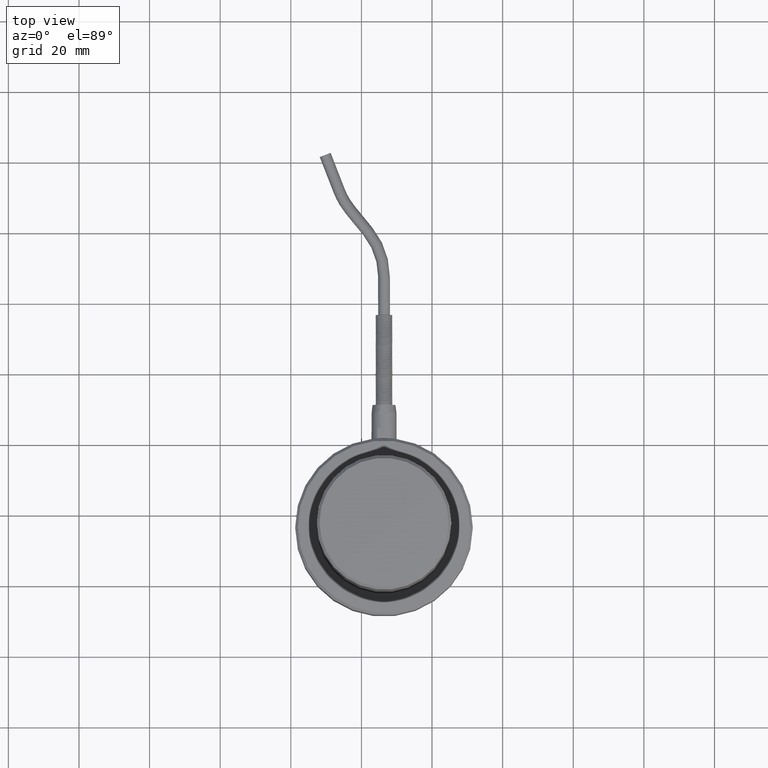
[diagram: clean part render]
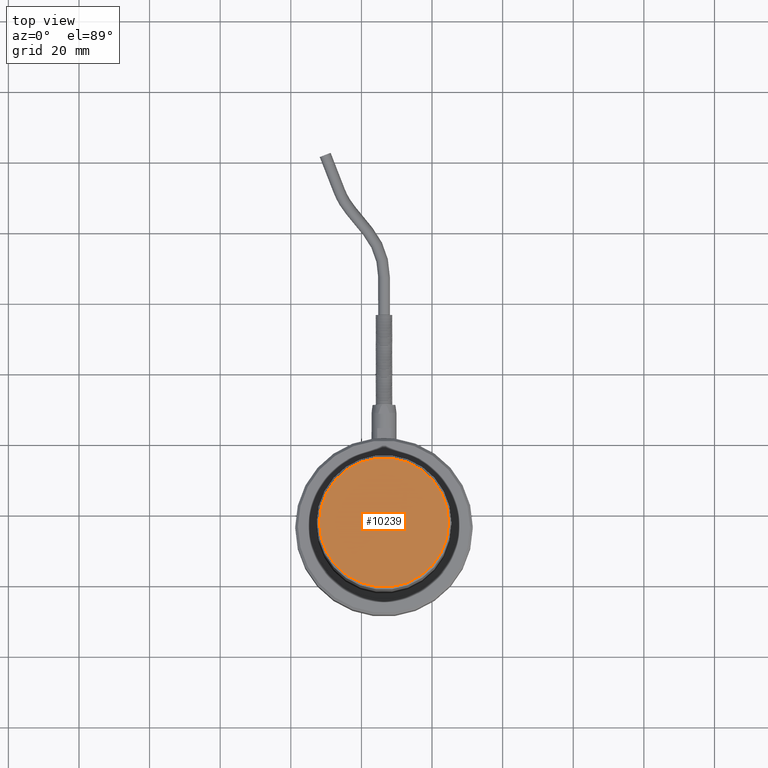
[diagram: same view with one face highlighted and labeled with its STEP entity id]
A machine part, top view. The second image highlights one B-rep face of the part: STEP entity #10239.
In plain terms, the highlighted planar face has unit normal (0, 0, 1).
Its self-contained STEP definition (entity closure, byte-faithful):
#7074=CARTESIAN_POINT('',(0.719999999999999,8.817166E-017,-3.061000000000000));
#7075=VERTEX_POINT('',#7074);
#7076=CARTESIAN_POINT('',(-6.418799E-016,0.0,-3.061000000000000));
#7077=DIRECTION('',(0.0,0.0,1.0));
#7078=DIRECTION('',(-1.0,0.0,0.0));
#7079=AXIS2_PLACEMENT_3D('',#7076,#7077,#7078);
#7080=CIRCLE('',#7079,0.720000000000000);
#7081=EDGE_CURVE('',#7075,#7075,#7080,.T.);
#10231=CARTESIAN_POINT('',(0.374999999999999,0.0,-3.061000000000000));
#10232=DIRECTION('',(0.0,0.0,-1.0));
#10233=DIRECTION('',(-1.0,0.0,0.0));
#10234=AXIS2_PLACEMENT_3D('',#10231,#10232,#10233);
#10235=PLANE('',#10234);
#10236=ORIENTED_EDGE('',*,*,#7081,.F.);
#10237=EDGE_LOOP('',(#10236));
#10238=FACE_OUTER_BOUND('',#10237,.T.);
#10239=ADVANCED_FACE('',(#10238),#10235,.T.);